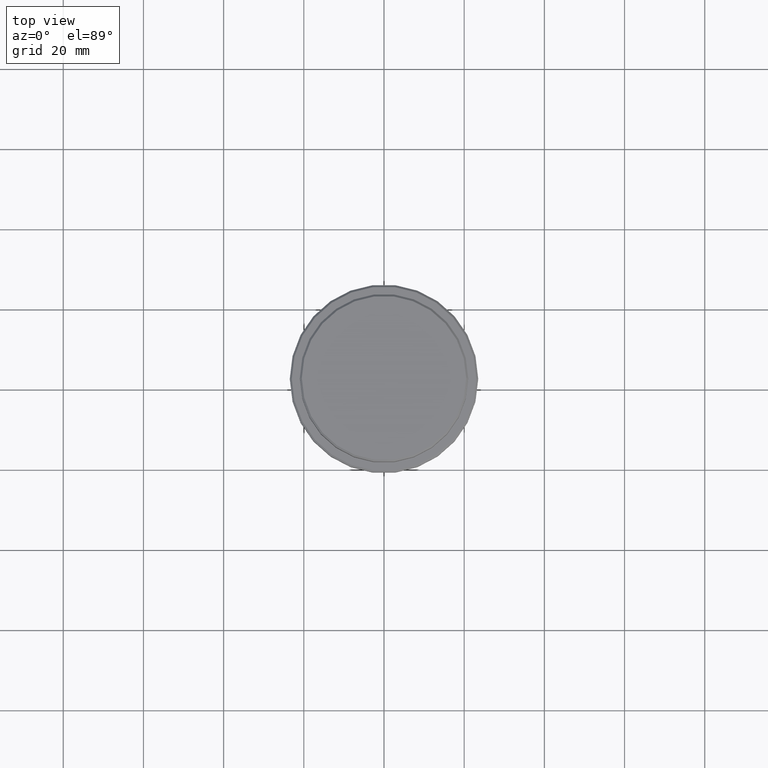
[diagram: clean part render]
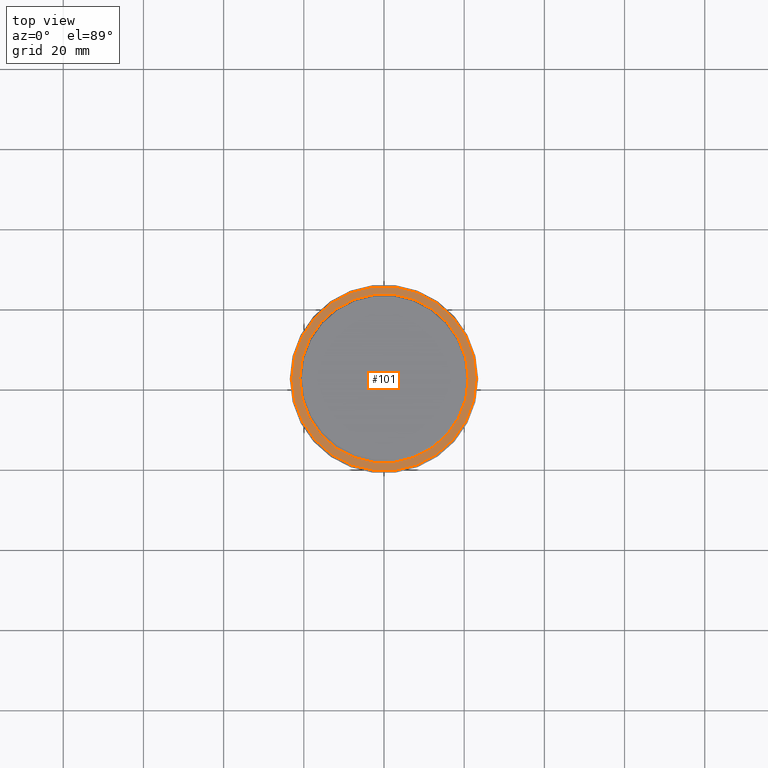
[diagram: same view with one face highlighted and labeled with its STEP entity id]
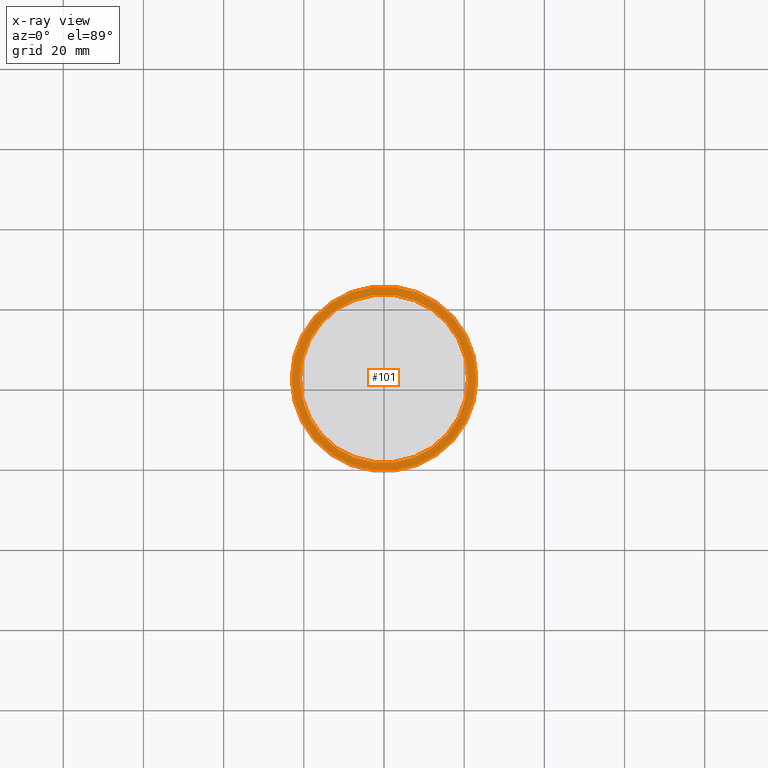
[diagram: x-ray of the same camera — body ghosted, the highlighted face saturated]
A machine part, top view. The second image highlights one B-rep face of the part: STEP entity #101.
The next image is the same camera in x-ray: the body ghosted, the highlighted face saturated — about 0% of this face is hidden behind the body in this view.
In plain terms, the highlighted planar face has unit normal (0, -0, 1).
Its self-contained STEP definition (entity closure, byte-faithful):
#47 = EDGE_LOOP ( 'NONE', ( #260, #767 ) ) ;
#52 = ORIENTED_EDGE ( 'NONE', *, *, #726, .T. ) ;
#101 = ADVANCED_FACE ( 'NONE', ( #1030, #1271 ), #1246, .T. ) ;
#102 = CIRCLE ( 'NONE', #1252, 20.99999999999999289 ) ;
#234 = CARTESIAN_POINT ( 'NONE',  ( 0.000000000000000000, 0.000000000000000000, -9.000000000000000000 ) ) ;
#260 = ORIENTED_EDGE ( 'NONE', *, *, #395, .T. ) ;
#264 = CARTESIAN_POINT ( 'NONE',  ( 0.000000000000000000, 20.49999999999999645, -9.000000000000000000 ) ) ;
#299 = CARTESIAN_POINT ( 'NONE',  ( 0.000000000000000000, 0.000000000000000000, -9.000000000000000000 ) ) ;
#331 = DIRECTION ( 'NONE',  ( -0.000000000000000000, -0.000000000000000000, 1.000000000000000000 ) ) ;
#389 = EDGE_CURVE ( 'NONE', #1225, #801, #842, .T. ) ;
#392 = DIRECTION ( 'NONE',  ( 0.000000000000000000, -0.000000000000000000, 1.000000000000000000 ) ) ;
#395 = EDGE_CURVE ( 'NONE', #826, #752, #102, .T. ) ;
#424 = DIRECTION ( 'NONE',  ( 1.000000000000000000, 0.000000000000000000, 0.000000000000000000 ) ) ;
#448 = DIRECTION ( 'NONE',  ( -0.000000000000000000, -0.000000000000000000, 1.000000000000000000 ) ) ;
#453 = AXIS2_PLACEMENT_3D ( 'NONE', #1239, #331, #1204 ) ;
#461 = DIRECTION ( 'NONE',  ( 0.000000000000000000, 0.000000000000000000, -1.000000000000000000 ) ) ;
#504 = AXIS2_PLACEMENT_3D ( 'NONE', #299, #628, #424 ) ;
#524 = EDGE_LOOP ( 'NONE', ( #52, #1220 ) ) ;
#537 = AXIS2_PLACEMENT_3D ( 'NONE', #264, #392, #1360 ) ;
#552 = DIRECTION ( 'NONE',  ( 1.000000000000000000, 0.000000000000000000, 0.000000000000000000 ) ) ;
#586 = CARTESIAN_POINT ( 'NONE',  ( 20.99999999999999289, 0.000000000000000000, -9.000000000000000000 ) ) ;
#588 = DIRECTION ( 'NONE',  ( 1.000000000000000000, 0.000000000000000000, 0.000000000000000000 ) ) ;
#628 = DIRECTION ( 'NONE',  ( 0.000000000000000000, 0.000000000000000000, -1.000000000000000000 ) ) ;
#630 = AXIS2_PLACEMENT_3D ( 'NONE', #960, #448, #552 ) ;
#637 = CARTESIAN_POINT ( 'NONE',  ( -20.99999999999999289, 2.571758278209440872E-15, -9.000000000000000000 ) ) ;
#669 = CARTESIAN_POINT ( 'NONE',  ( -22.99999999999996803, 0.000000000000000000, -9.000000000000000000 ) ) ;
#726 = EDGE_CURVE ( 'NONE', #801, #1225, #1369, .T. ) ;
#735 = EDGE_CURVE ( 'NONE', #752, #826, #1276, .T. ) ;
#752 = VERTEX_POINT ( 'NONE', #637 ) ;
#767 = ORIENTED_EDGE ( 'NONE', *, *, #735, .T. ) ;
#801 = VERTEX_POINT ( 'NONE', #669 ) ;
#826 = VERTEX_POINT ( 'NONE', #586 ) ;
#842 = CIRCLE ( 'NONE', #453, 22.99999999999996803 ) ;
#960 = CARTESIAN_POINT ( 'NONE',  ( 0.000000000000000000, 0.000000000000000000, -9.000000000000000000 ) ) ;
#1030 = FACE_OUTER_BOUND ( 'NONE', #524, .T. ) ;
#1032 = CARTESIAN_POINT ( 'NONE',  ( 22.99999999999996803, 2.847303808017594561E-15, -9.000000000000000000 ) ) ;
#1204 = DIRECTION ( 'NONE',  ( 1.000000000000000000, 0.000000000000000000, 0.000000000000000000 ) ) ;
#1220 = ORIENTED_EDGE ( 'NONE', *, *, #389, .T. ) ;
#1225 = VERTEX_POINT ( 'NONE', #1032 ) ;
#1239 = CARTESIAN_POINT ( 'NONE',  ( 0.000000000000000000, 0.000000000000000000, -9.000000000000000000 ) ) ;
#1246 = PLANE ( 'NONE',  #537 ) ;
#1252 = AXIS2_PLACEMENT_3D ( 'NONE', #234, #461, #588 ) ;
#1271 = FACE_BOUND ( 'NONE', #47, .T. ) ;
#1276 = CIRCLE ( 'NONE', #504, 20.99999999999999289 ) ;
#1360 = DIRECTION ( 'NONE',  ( 1.000000000000000000, 0.000000000000000000, 0.000000000000000000 ) ) ;
#1369 = CIRCLE ( 'NONE', #630, 22.99999999999996803 ) ;